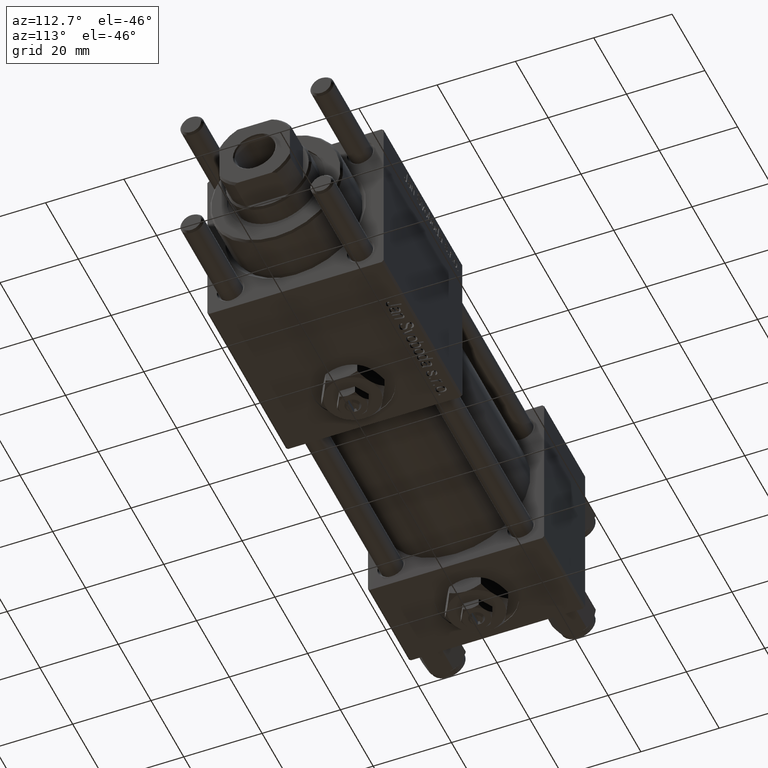
[diagram: clean part render]
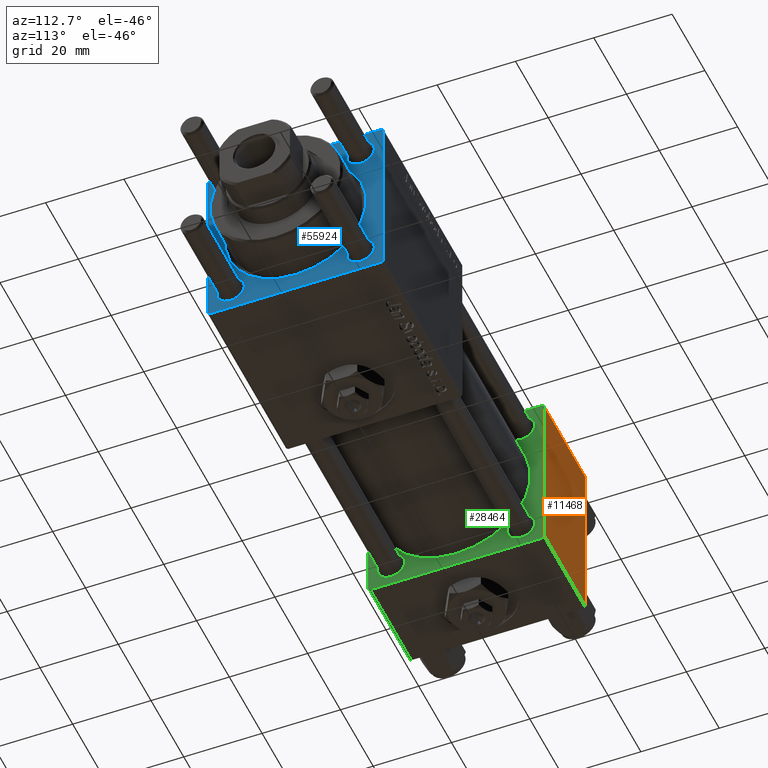
[diagram: same view with three faces highlighted in distinct colors, each labeled with its STEP entity id]
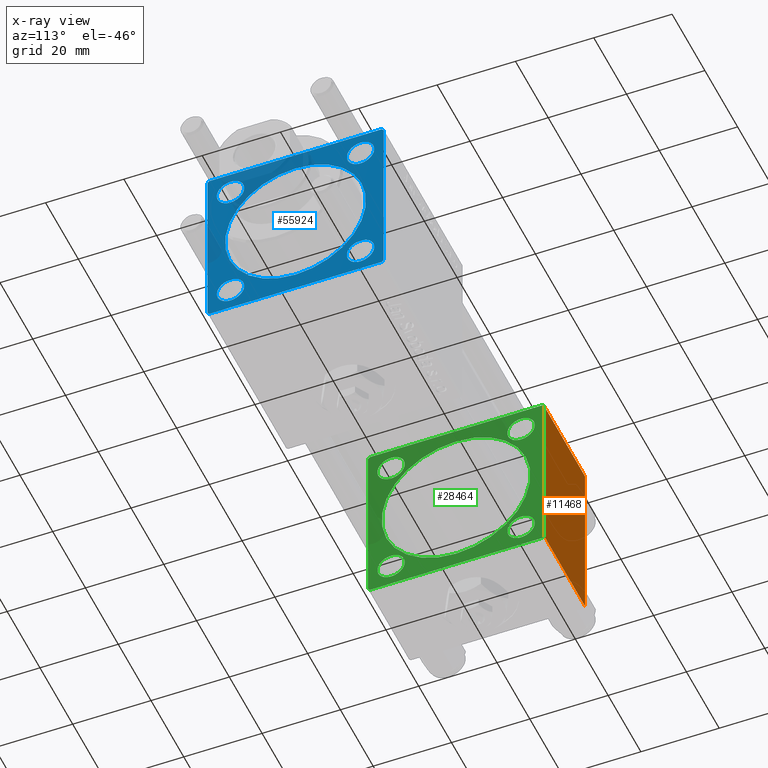
[diagram: x-ray of the same camera — body ghosted, the three highlighted faces saturated]
A machine part, auxiliary view with three faces highlighted in distinct colors.
The next image is the same camera in x-ray (body ghosted, the three faces saturated) — at least one of them is partly hidden behind the body in this view.
Their STEP definitions:

[orange] entity #11468 — the highlighted planar face has unit normal (0, 1, 0).
#2167 = LINE ( 'NONE', #20338, #26146 ) ;
#2534 = VERTEX_POINT ( 'NONE', #26929 ) ;
#2888 = VERTEX_POINT ( 'NONE', #6525 ) ;
#6502 = CARTESIAN_POINT ( 'NONE',  ( 25.00000000000000000, 22.50000000000000000, 21.99999999999999645 ) ) ;
#6525 = CARTESIAN_POINT ( 'NONE',  ( 0.000000000000000000, 22.50000000000000000, -21.99999999999996803 ) ) ;
#6838 = VERTEX_POINT ( 'NONE', #55417 ) ;
#8275 = EDGE_CURVE ( 'NONE', #6838, #2534, #10686, .T. ) ;
#8635 = DIRECTION ( 'NONE',  ( 0.000000000000000000, -0.000000000000000000, 1.000000000000000000 ) ) ;
#8833 = VERTEX_POINT ( 'NONE', #20430 ) ;
#10686 = LINE ( 'NONE', #6502, #23489 ) ;
#11468 = ADVANCED_FACE ( 'NONE', ( #30081 ), #48233, .T. ) ;
#13055 = VECTOR ( 'NONE', #22124, 1000.000000000000000 ) ;
#14270 = ORIENTED_EDGE ( 'NONE', *, *, #8275, .T. ) ;
#19312 = EDGE_LOOP ( 'NONE', ( #57855, #32314, #23194, #14270 ) ) ;
#19765 = CARTESIAN_POINT ( 'NONE',  ( 0.000000000000000000, 22.50000000000000000, 22.50000000000000355 ) ) ;
#20338 = CARTESIAN_POINT ( 'NONE',  ( 25.00000000000000000, 22.50000000000000000, -21.99999999999998224 ) ) ;
#20430 = CARTESIAN_POINT ( 'NONE',  ( 25.00000000000000000, 22.50000000000000000, -21.99999999999996803 ) ) ;
#22041 = CARTESIAN_POINT ( 'NONE',  ( 25.00000000000000000, 22.50000000000000000, 22.50000000000000355 ) ) ;
#22124 = DIRECTION ( 'NONE',  ( 0.000000000000000000, 0.000000000000000000, -1.000000000000000000 ) ) ;
#23194 = ORIENTED_EDGE ( 'NONE', *, *, #49014, .F. ) ;
#23489 = VECTOR ( 'NONE', #34162, 1000.000000000000000 ) ;
#24568 = AXIS2_PLACEMENT_3D ( 'NONE', #22041, #25921, #8635 ) ;
#25921 = DIRECTION ( 'NONE',  ( -0.000000000000000000, 1.000000000000000000, 0.000000000000000000 ) ) ;
#26146 = VECTOR ( 'NONE', #38474, 1000.000000000000000 ) ;
#26929 = CARTESIAN_POINT ( 'NONE',  ( 25.00000000000000000, 22.50000000000000000, 21.99999999999999645 ) ) ;
#28385 = LINE ( 'NONE', #19765, #58622 ) ;
#30081 = FACE_OUTER_BOUND ( 'NONE', #19312, .T. ) ;
#32314 = ORIENTED_EDGE ( 'NONE', *, *, #44165, .T. ) ;
#34162 = DIRECTION ( 'NONE',  ( 1.000000000000000000, 0.000000000000000000, 0.000000000000000000 ) ) ;
#38474 = DIRECTION ( 'NONE',  ( -1.000000000000000000, 0.000000000000000000, 0.000000000000000000 ) ) ;
#40848 = LINE ( 'NONE', #50374, #13055 ) ;
#44165 = EDGE_CURVE ( 'NONE', #8833, #2888, #2167, .T. ) ;
#46534 = DIRECTION ( 'NONE',  ( 0.000000000000000000, 0.000000000000000000, -1.000000000000000000 ) ) ;
#48233 = PLANE ( 'NONE',  #24568 ) ;
#49014 = EDGE_CURVE ( 'NONE', #6838, #2888, #28385, .T. ) ;
#50374 = CARTESIAN_POINT ( 'NONE',  ( 25.00000000000000000, 22.50000000000000000, 22.50000000000000355 ) ) ;
#53789 = EDGE_CURVE ( 'NONE', #2534, #8833, #40848, .T. ) ;
#55417 = CARTESIAN_POINT ( 'NONE',  ( 0.000000000000000000, 22.50000000000000000, 21.99999999999999645 ) ) ;
#57855 = ORIENTED_EDGE ( 'NONE', *, *, #53789, .T. ) ;
#58622 = VECTOR ( 'NONE', #46534, 1000.000000000000000 ) ;

[blue] entity #55924 — the highlighted planar face has unit normal (-1, 0, 0).
#23 = ORIENTED_EDGE ( 'NONE', *, *, #56389, .T. ) ;
#249 = CARTESIAN_POINT ( 'NONE',  ( 123.0000000000000142, 22.50000000000000355, 22.50000000000000355 ) ) ;
#540 = DIRECTION ( 'NONE',  ( 0.000000000000000000, 0.000000000000000000, -1.000000000000000000 ) ) ;
#557 = DIRECTION ( 'NONE',  ( 0.000000000000000000, 0.000000000000000000, 1.000000000000000000 ) ) ;
#2403 = EDGE_CURVE ( 'NONE', #38900, #55394, #55617, .T. ) ;
#2472 = CARTESIAN_POINT ( 'NONE',  ( 123.0000000000000142, 22.00000000000000355, -22.49999999999999645 ) ) ;
#2655 = ORIENTED_EDGE ( 'NONE', *, *, #44098, .T. ) ;
#3137 = FACE_BOUND ( 'NONE', #32100, .T. ) ;
#4509 = VERTEX_POINT ( 'NONE', #12715 ) ;
#4896 = EDGE_CURVE ( 'NONE', #6856, #5000, #16173, .T. ) ;
#5000 = VERTEX_POINT ( 'NONE', #47995 ) ;
#5122 = DIRECTION ( 'NONE',  ( -1.000000000000000000, 0.000000000000000000, -0.000000000000000000 ) ) ;
#5241 = CARTESIAN_POINT ( 'NONE',  ( 123.0000000000000142, -16.59999999999999076, -16.60000000000000853 ) ) ;
#5379 = VECTOR ( 'NONE', #35163, 1000.000000000000000 ) ;
#5402 = ORIENTED_EDGE ( 'NONE', *, *, #25968, .F. ) ;
#5508 = VECTOR ( 'NONE', #35130, 1000.000000000000000 ) ;
#6207 = EDGE_LOOP ( 'NONE', ( #58457, #51884 ) ) ;
#6355 = CARTESIAN_POINT ( 'NONE',  ( 123.0000000000000142, -22.49999999999999645, 22.00000000000000711 ) ) ;
#6595 = CARTESIAN_POINT ( 'NONE',  ( 123.0000000000000142, -16.59999999999999076, 20.10000000000000142 ) ) ;
#6643 = DIRECTION ( 'NONE',  ( -1.000000000000000000, 0.000000000000000000, -0.000000000000000000 ) ) ;
#6856 = VERTEX_POINT ( 'NONE', #14072 ) ;
#7830 = EDGE_CURVE ( 'NONE', #33444, #55043, #53837, .T. ) ;
#7872 = DIRECTION ( 'NONE',  ( -1.000000000000000000, 0.000000000000000000, -0.000000000000000000 ) ) ;
#8099 = CARTESIAN_POINT ( 'NONE',  ( 123.0000000000000142, -21.99999999999998224, -22.50000000000000000 ) ) ;
#8396 = VERTEX_POINT ( 'NONE', #54956 ) ;
#8470 = CARTESIAN_POINT ( 'NONE',  ( 123.0000000000000142, -16.59999999999999076, -20.10000000000003695 ) ) ;
#9027 = VERTEX_POINT ( 'NONE', #2472 ) ;
#9492 = EDGE_LOOP ( 'NONE', ( #29243, #53352, #55674, #12774, #5402, #30844, #13718, #30207 ) ) ;
#9924 = DIRECTION ( 'NONE',  ( 0.000000000000000000, 0.000000000000000000, 1.000000000000000000 ) ) ;
#10340 = DIRECTION ( 'NONE',  ( 0.000000000000000000, 0.000000000000000000, 1.000000000000000000 ) ) ;
#10551 = DIRECTION ( 'NONE',  ( -0.000000000000000000, -0.7071067811865573427, -0.7071067811865378028 ) ) ;
#10565 = DIRECTION ( 'NONE',  ( -1.000000000000000000, 0.000000000000000000, -0.000000000000000000 ) ) ;
#10677 = CARTESIAN_POINT ( 'NONE',  ( 123.0000000000000142, 16.59999999999999787, 20.10000000000003340 ) ) ;
#11096 = LINE ( 'NONE', #34279, #31958 ) ;
#12236 = DIRECTION ( 'NONE',  ( -1.000000000000000000, 0.000000000000000000, -0.000000000000000000 ) ) ;
#12664 = FACE_BOUND ( 'NONE', #48649, .T. ) ;
#12715 = CARTESIAN_POINT ( 'NONE',  ( 123.0000000000000142, 16.59999999999999787, 13.09999999999997300 ) ) ;
#12774 = ORIENTED_EDGE ( 'NONE', *, *, #47250, .T. ) ;
#12886 = VECTOR ( 'NONE', #10551, 1000.000000000000000 ) ;
#12957 = FACE_OUTER_BOUND ( 'NONE', #9492, .T. ) ;
#13518 = CARTESIAN_POINT ( 'NONE',  ( 123.0000000000000142, 21.99999999999996092, 22.50000000000000355 ) ) ;
#13718 = ORIENTED_EDGE ( 'NONE', *, *, #52506, .T. ) ;
#13788 = AXIS2_PLACEMENT_3D ( 'NONE', #14392, #32531, #9924 ) ;
#14072 = CARTESIAN_POINT ( 'NONE',  ( 123.0000000000000142, -21.99999999999998224, 22.49999999999999289 ) ) ;
#14392 = CARTESIAN_POINT ( 'NONE',  ( 123.0000000000000142, 0.000000000000000000, 0.000000000000000000 ) ) ;
#14516 = ORIENTED_EDGE ( 'NONE', *, *, #19273, .T. ) ;
#14712 = AXIS2_PLACEMENT_3D ( 'NONE', #20020, #12236, #48235 ) ;
#14759 = VERTEX_POINT ( 'NONE', #44154 ) ;
#15163 = CARTESIAN_POINT ( 'NONE',  ( 123.0000000000000142, 0.000000000000000000, -18.00000000000000355 ) ) ;
#15648 = CIRCLE ( 'NONE', #14712, 3.500000000000031086 ) ;
#16173 = LINE ( 'NONE', #6355, #12886 ) ;
#17166 = EDGE_CURVE ( 'NONE', #55394, #38900, #19839, .T. ) ;
#17719 = DIRECTION ( 'NONE',  ( -1.000000000000000000, 0.000000000000000000, -0.000000000000000000 ) ) ;
#18133 = ORIENTED_EDGE ( 'NONE', *, *, #7830, .T. ) ;
#18662 = VERTEX_POINT ( 'NONE', #8099 ) ;
#18744 = CARTESIAN_POINT ( 'NONE',  ( 123.0000000000000142, 16.59999999999999787, -16.60000000000000497 ) ) ;
#19273 = EDGE_CURVE ( 'NONE', #21733, #20828, #55065, .T. ) ;
#19839 = CIRCLE ( 'NONE', #55927, 3.499999999999989342 ) ;
#20020 = CARTESIAN_POINT ( 'NONE',  ( 123.0000000000000142, 16.59999999999999787, 16.60000000000000497 ) ) ;
#20438 = VERTEX_POINT ( 'NONE', #13518 ) ;
#20828 = VERTEX_POINT ( 'NONE', #52676 ) ;
#21125 = AXIS2_PLACEMENT_3D ( 'NONE', #22392, #5122, #54815 ) ;
#21308 = FACE_BOUND ( 'NONE', #38746, .T. ) ;
#21558 = AXIS2_PLACEMENT_3D ( 'NONE', #18744, #35480, #557 ) ;
#21733 = VERTEX_POINT ( 'NONE', #15163 ) ;
#22392 = CARTESIAN_POINT ( 'NONE',  ( 123.0000000000000142, 16.59999999999999787, -16.60000000000000497 ) ) ;
#24879 = ORIENTED_EDGE ( 'NONE', *, *, #52364, .T. ) ;
#25968 = EDGE_CURVE ( 'NONE', #37747, #14759, #28532, .T. ) ;
#27323 = AXIS2_PLACEMENT_3D ( 'NONE', #43117, #42839, #52920 ) ;
#28229 = CIRCLE ( 'NONE', #21558, 3.500000000000031086 ) ;
#28532 = LINE ( 'NONE', #249, #38125 ) ;
#28778 = DIRECTION ( 'NONE',  ( -1.000000000000000000, 0.000000000000000000, -0.000000000000000000 ) ) ;
#29243 = ORIENTED_EDGE ( 'NONE', *, *, #48143, .T. ) ;
#30172 = AXIS2_PLACEMENT_3D ( 'NONE', #48962, #17719, #53135 ) ;
#30207 = ORIENTED_EDGE ( 'NONE', *, *, #4896, .T. ) ;
#30799 = PLANE ( 'NONE',  #30172 ) ;
#30844 = ORIENTED_EDGE ( 'NONE', *, *, #56087, .T. ) ;
#30850 = VECTOR ( 'NONE', #57379, 999.9999999999998863 ) ;
#31632 = VECTOR ( 'NONE', #41145, 1000.000000000000000 ) ;
#31958 = VECTOR ( 'NONE', #47088, 1000.000000000000000 ) ;
#32100 = EDGE_LOOP ( 'NONE', ( #46766, #24879 ) ) ;
#32200 = DIRECTION ( 'NONE',  ( -1.000000000000000000, 0.000000000000000000, -0.000000000000000000 ) ) ;
#32251 = AXIS2_PLACEMENT_3D ( 'NONE', #47062, #32200, #37855 ) ;
#32411 = LINE ( 'NONE', #57800, #58618 ) ;
#32531 = DIRECTION ( 'NONE',  ( -1.000000000000000000, 0.000000000000000000, -0.000000000000000000 ) ) ;
#33019 = EDGE_CURVE ( 'NONE', #55043, #33444, #56298, .T. ) ;
#33302 = EDGE_CURVE ( 'NONE', #44405, #8396, #41078, .T. ) ;
#33444 = VERTEX_POINT ( 'NONE', #46491 ) ;
#34028 = VERTEX_POINT ( 'NONE', #49844 ) ;
#34279 = CARTESIAN_POINT ( 'NONE',  ( 123.0000000000000142, 22.50000000000000355, -22.00000000000001066 ) ) ;
#34836 = CARTESIAN_POINT ( 'NONE',  ( 123.0000000000000142, 21.99999999999996092, 22.50000000000000355 ) ) ;
#35130 = DIRECTION ( 'NONE',  ( 0.000000000000000000, -0.7071067811865573427, 0.7071067811865378028 ) ) ;
#35163 = DIRECTION ( 'NONE',  ( 0.000000000000000000, 0.000000000000000000, -1.000000000000000000 ) ) ;
#35480 = DIRECTION ( 'NONE',  ( -1.000000000000000000, 0.000000000000000000, -0.000000000000000000 ) ) ;
#35745 = LINE ( 'NONE', #45265, #5379 ) ;
#35764 = EDGE_CURVE ( 'NONE', #9027, #18662, #50083, .T. ) ;
#36842 = CIRCLE ( 'NONE', #27323, 3.500000000000031086 ) ;
#36986 = CARTESIAN_POINT ( 'NONE',  ( 123.0000000000000142, 22.50000000000000355, -22.49999999999999645 ) ) ;
#37230 = CARTESIAN_POINT ( 'NONE',  ( 123.0000000000000142, 16.59999999999999787, -20.10000000000003340 ) ) ;
#37296 = DIRECTION ( 'NONE',  ( 0.000000000000000000, 0.000000000000000000, 1.000000000000000000 ) ) ;
#37747 = VERTEX_POINT ( 'NONE', #45261 ) ;
#37855 = DIRECTION ( 'NONE',  ( 0.000000000000000000, 0.000000000000000000, 1.000000000000000000 ) ) ;
#38125 = VECTOR ( 'NONE', #540, 1000.000000000000000 ) ;
#38476 = CARTESIAN_POINT ( 'NONE',  ( 123.0000000000000142, -16.59999999999999076, 16.60000000000000853 ) ) ;
#38746 = EDGE_LOOP ( 'NONE', ( #23, #44013 ) ) ;
#38900 = VERTEX_POINT ( 'NONE', #6595 ) ;
#39541 = LINE ( 'NONE', #52930, #30850 ) ;
#39899 = EDGE_CURVE ( 'NONE', #57920, #4509, #15648, .T. ) ;
#41078 = CIRCLE ( 'NONE', #21125, 3.500000000000031086 ) ;
#41145 = DIRECTION ( 'NONE',  ( 0.000000000000000000, -1.000000000000000000, -7.709882115452476934E-17 ) ) ;
#41356 = CIRCLE ( 'NONE', #13788, 18.00000000000000355 ) ;
#41639 = DIRECTION ( 'NONE',  ( 0.000000000000000000, -1.000000000000000000, -2.312964634635742957E-16 ) ) ;
#41646 = EDGE_CURVE ( 'NONE', #34028, #18662, #39541, .T. ) ;
#42166 = CARTESIAN_POINT ( 'NONE',  ( 123.0000000000000142, -16.59999999999999076, 16.60000000000000853 ) ) ;
#42839 = DIRECTION ( 'NONE',  ( -1.000000000000000000, 0.000000000000000000, -0.000000000000000000 ) ) ;
#43117 = CARTESIAN_POINT ( 'NONE',  ( 123.0000000000000142, 16.59999999999999787, 16.60000000000000497 ) ) ;
#43189 = LINE ( 'NONE', #34836, #5508 ) ;
#44013 = ORIENTED_EDGE ( 'NONE', *, *, #39899, .T. ) ;
#44098 = EDGE_CURVE ( 'NONE', #20828, #21733, #41356, .T. ) ;
#44154 = CARTESIAN_POINT ( 'NONE',  ( 123.0000000000000142, 22.50000000000000355, -21.99999999999999645 ) ) ;
#44405 = VERTEX_POINT ( 'NONE', #37230 ) ;
#45261 = CARTESIAN_POINT ( 'NONE',  ( 123.0000000000000142, 22.50000000000000355, 21.99999999999997513 ) ) ;
#45265 = CARTESIAN_POINT ( 'NONE',  ( 123.0000000000000142, -22.49999999999999645, 22.49999999999999289 ) ) ;
#46107 = AXIS2_PLACEMENT_3D ( 'NONE', #42166, #28778, #10340 ) ;
#46491 = CARTESIAN_POINT ( 'NONE',  ( 123.0000000000000142, -16.59999999999999076, -13.09999999999997655 ) ) ;
#46766 = ORIENTED_EDGE ( 'NONE', *, *, #33302, .T. ) ;
#47062 = CARTESIAN_POINT ( 'NONE',  ( 123.0000000000000142, 0.000000000000000000, 0.000000000000000000 ) ) ;
#47088 = DIRECTION ( 'NONE',  ( -0.000000000000000000, 0.7071067811865573427, 0.7071067811865378028 ) ) ;
#47250 = EDGE_CURVE ( 'NONE', #9027, #14759, #11096, .T. ) ;
#47425 = ORIENTED_EDGE ( 'NONE', *, *, #33019, .T. ) ;
#47995 = CARTESIAN_POINT ( 'NONE',  ( 123.0000000000000142, -22.49999999999999645, 22.00000000000000711 ) ) ;
#48143 = EDGE_CURVE ( 'NONE', #5000, #34028, #35745, .T. ) ;
#48235 = DIRECTION ( 'NONE',  ( 0.000000000000000000, 0.000000000000000000, 1.000000000000000000 ) ) ;
#48638 = DIRECTION ( 'NONE',  ( 0.000000000000000000, 0.000000000000000000, 1.000000000000000000 ) ) ;
#48649 = EDGE_LOOP ( 'NONE', ( #14516, #2655 ) ) ;
#48962 = CARTESIAN_POINT ( 'NONE',  ( 123.0000000000000142, 0.000000000000000000, 0.000000000000000000 ) ) ;
#49844 = CARTESIAN_POINT ( 'NONE',  ( 123.0000000000000142, -22.49999999999999645, -21.99999999999997868 ) ) ;
#50083 = LINE ( 'NONE', #36986, #31632 ) ;
#51884 = ORIENTED_EDGE ( 'NONE', *, *, #2403, .T. ) ;
#52364 = EDGE_CURVE ( 'NONE', #8396, #44405, #28229, .T. ) ;
#52480 = DIRECTION ( 'NONE',  ( 0.000000000000000000, 0.000000000000000000, 1.000000000000000000 ) ) ;
#52506 = EDGE_CURVE ( 'NONE', #20438, #6856, #32411, .T. ) ;
#52676 = CARTESIAN_POINT ( 'NONE',  ( 123.0000000000000142, 2.204364238465235822E-15, 18.00000000000000355 ) ) ;
#52920 = DIRECTION ( 'NONE',  ( 0.000000000000000000, 0.000000000000000000, 1.000000000000000000 ) ) ;
#52930 = CARTESIAN_POINT ( 'NONE',  ( 123.0000000000000142, -21.99999999999999645, -22.50000000000000000 ) ) ;
#53135 = DIRECTION ( 'NONE',  ( -0.000000000000000000, 0.000000000000000000, 1.000000000000000000 ) ) ;
#53352 = ORIENTED_EDGE ( 'NONE', *, *, #41646, .T. ) ;
#53428 = FACE_BOUND ( 'NONE', #58146, .T. ) ;
#53720 = FACE_BOUND ( 'NONE', #6207, .T. ) ;
#53837 = CIRCLE ( 'NONE', #56691, 3.500000000000031086 ) ;
#54378 = AXIS2_PLACEMENT_3D ( 'NONE', #56932, #10565, #52480 ) ;
#54815 = DIRECTION ( 'NONE',  ( 0.000000000000000000, 0.000000000000000000, 1.000000000000000000 ) ) ;
#54956 = CARTESIAN_POINT ( 'NONE',  ( 123.0000000000000142, 16.59999999999999787, -13.09999999999997300 ) ) ;
#55043 = VERTEX_POINT ( 'NONE', #8470 ) ;
#55065 = CIRCLE ( 'NONE', #32251, 18.00000000000000355 ) ;
#55394 = VERTEX_POINT ( 'NONE', #56278 ) ;
#55617 = CIRCLE ( 'NONE', #46107, 3.499999999999989342 ) ;
#55674 = ORIENTED_EDGE ( 'NONE', *, *, #35764, .F. ) ;
#55924 = ADVANCED_FACE ( 'NONE', ( #53428, #3137, #21308, #53720, #12664, #12957 ), #30799, .F. ) ;
#55927 = AXIS2_PLACEMENT_3D ( 'NONE', #38476, #6643, #37296 ) ;
#56087 = EDGE_CURVE ( 'NONE', #37747, #20438, #43189, .T. ) ;
#56278 = CARTESIAN_POINT ( 'NONE',  ( 123.0000000000000142, -16.59999999999999076, 13.10000000000001741 ) ) ;
#56298 = CIRCLE ( 'NONE', #54378, 3.500000000000031086 ) ;
#56389 = EDGE_CURVE ( 'NONE', #4509, #57920, #36842, .T. ) ;
#56691 = AXIS2_PLACEMENT_3D ( 'NONE', #5241, #7872, #48638 ) ;
#56932 = CARTESIAN_POINT ( 'NONE',  ( 123.0000000000000142, -16.59999999999999076, -16.60000000000000853 ) ) ;
#57379 = DIRECTION ( 'NONE',  ( 0.000000000000000000, 0.7071067811865425767, -0.7071067811865525687 ) ) ;
#57800 = CARTESIAN_POINT ( 'NONE',  ( 123.0000000000000142, 22.50000000000000355, 22.50000000000000355 ) ) ;
#57920 = VERTEX_POINT ( 'NONE', #10677 ) ;
#58146 = EDGE_LOOP ( 'NONE', ( #47425, #18133 ) ) ;
#58457 = ORIENTED_EDGE ( 'NONE', *, *, #17166, .T. ) ;
#58618 = VECTOR ( 'NONE', #41639, 1000.000000000000000 ) ;

[green] entity #28464 — the highlighted planar face has unit normal (-1, 0, 0).
#138 = CARTESIAN_POINT ( 'NONE',  ( 25.00000000000000000, -2.602085213965210642E-15, 0.000000000000000000 ) ) ;
#1045 = DIRECTION ( 'NONE',  ( 0.000000000000000000, 0.000000000000000000, 1.000000000000000000 ) ) ;
#1433 = LINE ( 'NONE', #5621, #13195 ) ;
#1451 = LINE ( 'NONE', #56491, #29256 ) ;
#1626 = AXIS2_PLACEMENT_3D ( 'NONE', #35129, #53865, #58021 ) ;
#1663 = ORIENTED_EDGE ( 'NONE', *, *, #3251, .F. ) ;
#1924 = DIRECTION ( 'NONE',  ( 0.000000000000000000, 0.000000000000000000, 1.000000000000000000 ) ) ;
#2467 = DIRECTION ( 'NONE',  ( -1.000000000000000000, 0.000000000000000000, -0.000000000000000000 ) ) ;
#2534 = VERTEX_POINT ( 'NONE', #26929 ) ;
#2574 = EDGE_CURVE ( 'NONE', #39057, #35759, #35562, .T. ) ;
#2688 = LINE ( 'NONE', #16677, #6401 ) ;
#2807 = AXIS2_PLACEMENT_3D ( 'NONE', #30432, #31597, #27137 ) ;
#3214 = CARTESIAN_POINT ( 'NONE',  ( 25.00000000000000000, -16.59999999999999076, -13.10000000000001741 ) ) ;
#3251 = EDGE_CURVE ( 'NONE', #27130, #32746, #9998, .T. ) ;
#3284 = CIRCLE ( 'NONE', #54607, 3.500000000000003109 ) ;
#4245 = DIRECTION ( 'NONE',  ( -1.000000000000000000, 0.000000000000000000, -0.000000000000000000 ) ) ;
#5621 = CARTESIAN_POINT ( 'NONE',  ( 25.00000000000000000, 22.50000000000000000, -22.49999999999999645 ) ) ;
#5960 = DIRECTION ( 'NONE',  ( 0.000000000000000000, 0.000000000000000000, 1.000000000000000000 ) ) ;
#6112 = DIRECTION ( 'NONE',  ( -1.000000000000000000, 0.000000000000000000, -0.000000000000000000 ) ) ;
#6334 = VERTEX_POINT ( 'NONE', #13397 ) ;
#6392 = CARTESIAN_POINT ( 'NONE',  ( 25.00000000000000000, -16.59999999999999076, 16.60000000000000853 ) ) ;
#6401 = VECTOR ( 'NONE', #38133, 1000.000000000000000 ) ;
#6764 = EDGE_CURVE ( 'NONE', #47202, #56483, #53803, .T. ) ;
#6944 = CARTESIAN_POINT ( 'NONE',  ( 25.00000000000000000, -16.59999999999999076, -16.60000000000000853 ) ) ;
#7529 = DIRECTION ( 'NONE',  ( -0.000000000000000000, 0.7071067811865426878, 0.7071067811865524577 ) ) ;
#8294 = VERTEX_POINT ( 'NONE', #56476 ) ;
#8591 = FACE_BOUND ( 'NONE', #9192, .T. ) ;
#8788 = AXIS2_PLACEMENT_3D ( 'NONE', #19504, #23369, #41203 ) ;
#8833 = VERTEX_POINT ( 'NONE', #20430 ) ;
#9192 = EDGE_LOOP ( 'NONE', ( #34732, #31561 ) ) ;
#9384 = EDGE_CURVE ( 'NONE', #35759, #40297, #2688, .T. ) ;
#9998 = CIRCLE ( 'NONE', #19531, 19.00000000000000000 ) ;
#10436 = DIRECTION ( 'NONE',  ( 0.000000000000000000, -1.000000000000000000, -7.709882115452476934E-17 ) ) ;
#10480 = EDGE_CURVE ( 'NONE', #40297, #40833, #1451, .T. ) ;
#10494 = ORIENTED_EDGE ( 'NONE', *, *, #13291, .T. ) ;
#10590 = CARTESIAN_POINT ( 'NONE',  ( 25.00000000000000000, 16.59999999999999787, 16.60000000000000497 ) ) ;
#10833 = VERTEX_POINT ( 'NONE', #47216 ) ;
#11785 = ORIENTED_EDGE ( 'NONE', *, *, #46790, .T. ) ;
#12366 = CARTESIAN_POINT ( 'NONE',  ( 25.00000000000000000, 21.99999999999999289, 22.50000000000000355 ) ) ;
#13055 = VECTOR ( 'NONE', #22124, 1000.000000000000000 ) ;
#13195 = VECTOR ( 'NONE', #28239, 1000.000000000000000 ) ;
#13260 = DIRECTION ( 'NONE',  ( 0.000000000000000000, 0.000000000000000000, 1.000000000000000000 ) ) ;
#13291 = EDGE_CURVE ( 'NONE', #6334, #51943, #27289, .T. ) ;
#13364 = FACE_BOUND ( 'NONE', #37019, .T. ) ;
#13397 = CARTESIAN_POINT ( 'NONE',  ( 25.00000000000000000, -16.59999999999999076, 20.10000000000000142 ) ) ;
#13923 = AXIS2_PLACEMENT_3D ( 'NONE', #26874, #4245, #22407 ) ;
#14751 = EDGE_CURVE ( 'NONE', #51943, #6334, #19803, .T. ) ;
#14818 = CIRCLE ( 'NONE', #37633, 3.499999999999989342 ) ;
#14877 = ORIENTED_EDGE ( 'NONE', *, *, #18101, .F. ) ;
#14974 = CARTESIAN_POINT ( 'NONE',  ( 25.00000000000000000, -16.59999999999999076, -20.09999999999999787 ) ) ;
#16320 = ORIENTED_EDGE ( 'NONE', *, *, #23915, .T. ) ;
#16377 = AXIS2_PLACEMENT_3D ( 'NONE', #49368, #17234, #35974 ) ;
#16677 = CARTESIAN_POINT ( 'NONE',  ( 25.00000000000000000, -22.50000000000000000, 22.50000000000000000 ) ) ;
#17234 = DIRECTION ( 'NONE',  ( -1.000000000000000000, 0.000000000000000000, -0.000000000000000000 ) ) ;
#17430 = AXIS2_PLACEMENT_3D ( 'NONE', #29160, #33331, #5960 ) ;
#17528 = FACE_BOUND ( 'NONE', #45147, .T. ) ;
#17867 = AXIS2_PLACEMENT_3D ( 'NONE', #6392, #29017, #1924 ) ;
#18101 = EDGE_CURVE ( 'NONE', #29034, #40833, #1433, .T. ) ;
#18812 = LINE ( 'NONE', #33648, #34087 ) ;
#19504 = CARTESIAN_POINT ( 'NONE',  ( 25.00000000000000000, -2.602085213965210642E-15, 0.000000000000000000 ) ) ;
#19531 = AXIS2_PLACEMENT_3D ( 'NONE', #138, #54025, #13260 ) ;
#19803 = CIRCLE ( 'NONE', #17867, 3.499999999999992895 ) ;
#20430 = CARTESIAN_POINT ( 'NONE',  ( 25.00000000000000000, 22.50000000000000000, -21.99999999999996803 ) ) ;
#20643 = DIRECTION ( 'NONE',  ( 0.000000000000000000, 0.000000000000000000, 1.000000000000000000 ) ) ;
#21339 = EDGE_CURVE ( 'NONE', #8294, #10833, #40837, .T. ) ;
#21416 = FACE_BOUND ( 'NONE', #37954, .T. ) ;
#22124 = DIRECTION ( 'NONE',  ( 0.000000000000000000, 0.000000000000000000, -1.000000000000000000 ) ) ;
#22407 = DIRECTION ( 'NONE',  ( 0.000000000000000000, 0.000000000000000000, 1.000000000000000000 ) ) ;
#23369 = DIRECTION ( 'NONE',  ( 1.000000000000000000, -0.000000000000000000, 0.000000000000000000 ) ) ;
#23701 = CARTESIAN_POINT ( 'NONE',  ( 25.00000000000000000, 16.59999999999999787, 13.10000000000000142 ) ) ;
#23915 = EDGE_CURVE ( 'NONE', #27262, #39057, #34199, .T. ) ;
#24123 = CARTESIAN_POINT ( 'NONE',  ( 25.00000000000000000, 22.50000000000000000, 22.50000000000000355 ) ) ;
#25977 = LINE ( 'NONE', #43252, #41599 ) ;
#26874 = CARTESIAN_POINT ( 'NONE',  ( 25.00000000000000000, -16.59999999999999076, -16.60000000000000853 ) ) ;
#26929 = CARTESIAN_POINT ( 'NONE',  ( 25.00000000000000000, 22.50000000000000000, 21.99999999999999645 ) ) ;
#27130 = VERTEX_POINT ( 'NONE', #56422 ) ;
#27137 = DIRECTION ( 'NONE',  ( 0.000000000000000000, 0.000000000000000000, 1.000000000000000000 ) ) ;
#27262 = VERTEX_POINT ( 'NONE', #12366 ) ;
#27289 = CIRCLE ( 'NONE', #1626, 3.499999999999992895 ) ;
#27866 = ORIENTED_EDGE ( 'NONE', *, *, #53789, .F. ) ;
#28239 = DIRECTION ( 'NONE',  ( 0.000000000000000000, -1.000000000000000000, -2.312964634635742957E-16 ) ) ;
#28464 = ADVANCED_FACE ( 'NONE', ( #8591, #17528, #13364, #21416, #39555, #31210 ), #49066, .F. ) ;
#29017 = DIRECTION ( 'NONE',  ( -1.000000000000000000, 0.000000000000000000, -0.000000000000000000 ) ) ;
#29034 = VERTEX_POINT ( 'NONE', #29620 ) ;
#29160 = CARTESIAN_POINT ( 'NONE',  ( 25.00000000000000000, 16.59999999999999787, -16.60000000000000497 ) ) ;
#29256 = VECTOR ( 'NONE', #37771, 1000.000000000000000 ) ;
#29620 = CARTESIAN_POINT ( 'NONE',  ( 25.00000000000000000, 21.99999999999999289, -22.49999999999999645 ) ) ;
#30383 = CARTESIAN_POINT ( 'NONE',  ( 25.00000000000000000, -21.99999999999997158, -22.50000000000000711 ) ) ;
#30432 = CARTESIAN_POINT ( 'NONE',  ( 25.00000000000000000, 16.59999999999999787, -16.60000000000000497 ) ) ;
#30644 = CARTESIAN_POINT ( 'NONE',  ( 25.00000000000000000, -21.99999999999997868, 22.50000000000000000 ) ) ;
#30859 = ORIENTED_EDGE ( 'NONE', *, *, #55179, .T. ) ;
#31210 = FACE_OUTER_BOUND ( 'NONE', #47047, .T. ) ;
#31561 = ORIENTED_EDGE ( 'NONE', *, *, #45028, .T. ) ;
#31597 = DIRECTION ( 'NONE',  ( -1.000000000000000000, 0.000000000000000000, -0.000000000000000000 ) ) ;
#31957 = ORIENTED_EDGE ( 'NONE', *, *, #42768, .T. ) ;
#32038 = CARTESIAN_POINT ( 'NONE',  ( 25.00000000000000000, -2.602085213965210642E-15, 19.00000000000000000 ) ) ;
#32198 = VERTEX_POINT ( 'NONE', #23701 ) ;
#32493 = ORIENTED_EDGE ( 'NONE', *, *, #9384, .T. ) ;
#32746 = VERTEX_POINT ( 'NONE', #32038 ) ;
#33331 = DIRECTION ( 'NONE',  ( -1.000000000000000000, 0.000000000000000000, -0.000000000000000000 ) ) ;
#33648 = CARTESIAN_POINT ( 'NONE',  ( 25.00000000000000000, 21.99999999999999289, 22.50000000000000355 ) ) ;
#34014 = EDGE_CURVE ( 'NONE', #32746, #27130, #54410, .T. ) ;
#34087 = VECTOR ( 'NONE', #42296, 1000.000000000000114 ) ;
#34199 = LINE ( 'NONE', #24123, #39986 ) ;
#34732 = ORIENTED_EDGE ( 'NONE', *, *, #6764, .T. ) ;
#35129 = CARTESIAN_POINT ( 'NONE',  ( 25.00000000000000000, -16.59999999999999076, 16.60000000000000853 ) ) ;
#35364 = EDGE_LOOP ( 'NONE', ( #52598, #1663 ) ) ;
#35562 = LINE ( 'NONE', #53133, #54678 ) ;
#35759 = VERTEX_POINT ( 'NONE', #41443 ) ;
#35810 = ORIENTED_EDGE ( 'NONE', *, *, #14751, .T. ) ;
#35974 = DIRECTION ( 'NONE',  ( -0.000000000000000000, 0.000000000000000000, 1.000000000000000000 ) ) ;
#36119 = EDGE_CURVE ( 'NONE', #10833, #8294, #53517, .T. ) ;
#36691 = CIRCLE ( 'NONE', #38595, 3.500000000000003109 ) ;
#37019 = EDGE_LOOP ( 'NONE', ( #35810, #10494 ) ) ;
#37633 = AXIS2_PLACEMENT_3D ( 'NONE', #6944, #2467, #20643 ) ;
#37771 = DIRECTION ( 'NONE',  ( 0.000000000000000000, 0.7071067811865426878, -0.7071067811865524577 ) ) ;
#37954 = EDGE_LOOP ( 'NONE', ( #31957, #11785 ) ) ;
#38133 = DIRECTION ( 'NONE',  ( 0.000000000000000000, 0.000000000000000000, -1.000000000000000000 ) ) ;
#38201 = CARTESIAN_POINT ( 'NONE',  ( 25.00000000000000000, -16.59999999999999076, 13.10000000000001386 ) ) ;
#38595 = AXIS2_PLACEMENT_3D ( 'NONE', #10590, #6112, #41224 ) ;
#38845 = ORIENTED_EDGE ( 'NONE', *, *, #10480, .T. ) ;
#39057 = VERTEX_POINT ( 'NONE', #30644 ) ;
#39555 = FACE_BOUND ( 'NONE', #35364, .T. ) ;
#39986 = VECTOR ( 'NONE', #10436, 1000.000000000000000 ) ;
#40297 = VERTEX_POINT ( 'NONE', #46054 ) ;
#40619 = DIRECTION ( 'NONE',  ( -0.000000000000000000, -0.7071067811865525687, -0.7071067811865425767 ) ) ;
#40833 = VERTEX_POINT ( 'NONE', #30383 ) ;
#40837 = CIRCLE ( 'NONE', #2807, 3.500000000000003109 ) ;
#40848 = LINE ( 'NONE', #50374, #13055 ) ;
#41203 = DIRECTION ( 'NONE',  ( 0.000000000000000000, 0.000000000000000000, 1.000000000000000000 ) ) ;
#41224 = DIRECTION ( 'NONE',  ( 0.000000000000000000, 0.000000000000000000, 1.000000000000000000 ) ) ;
#41443 = CARTESIAN_POINT ( 'NONE',  ( 25.00000000000000000, -22.50000000000000000, 22.00000000000000000 ) ) ;
#41599 = VECTOR ( 'NONE', #7529, 1000.000000000000000 ) ;
#41837 = CARTESIAN_POINT ( 'NONE',  ( 25.00000000000000000, 16.59999999999999787, 16.60000000000000497 ) ) ;
#42296 = DIRECTION ( 'NONE',  ( 0.000000000000000000, -0.7071067811865474617, 0.7071067811865474617 ) ) ;
#42756 = ORIENTED_EDGE ( 'NONE', *, *, #2574, .T. ) ;
#42768 = EDGE_CURVE ( 'NONE', #32198, #52387, #3284, .T. ) ;
#43252 = CARTESIAN_POINT ( 'NONE',  ( 25.00000000000000000, 22.50000000000000000, -21.99999999999998224 ) ) ;
#45028 = EDGE_CURVE ( 'NONE', #56483, #47202, #14818, .T. ) ;
#45147 = EDGE_LOOP ( 'NONE', ( #54964, #52347 ) ) ;
#45417 = DIRECTION ( 'NONE',  ( -1.000000000000000000, 0.000000000000000000, -0.000000000000000000 ) ) ;
#46054 = CARTESIAN_POINT ( 'NONE',  ( 25.00000000000000000, -22.50000000000000000, -21.99999999999997158 ) ) ;
#46790 = EDGE_CURVE ( 'NONE', #52387, #32198, #36691, .T. ) ;
#47047 = EDGE_LOOP ( 'NONE', ( #14877, #30859, #27866, #53338, #16320, #42756, #32493, #38845 ) ) ;
#47202 = VERTEX_POINT ( 'NONE', #14974 ) ;
#47216 = CARTESIAN_POINT ( 'NONE',  ( 25.00000000000000000, 16.59999999999999787, -20.10000000000000853 ) ) ;
#49066 = PLANE ( 'NONE',  #16377 ) ;
#49368 = CARTESIAN_POINT ( 'NONE',  ( 25.00000000000000000, 0.000000000000000000, 0.000000000000000000 ) ) ;
#50276 = CARTESIAN_POINT ( 'NONE',  ( 25.00000000000000000, 16.59999999999999787, 20.10000000000000853 ) ) ;
#50374 = CARTESIAN_POINT ( 'NONE',  ( 25.00000000000000000, 22.50000000000000000, 22.50000000000000355 ) ) ;
#51943 = VERTEX_POINT ( 'NONE', #38201 ) ;
#52347 = ORIENTED_EDGE ( 'NONE', *, *, #21339, .T. ) ;
#52387 = VERTEX_POINT ( 'NONE', #50276 ) ;
#52598 = ORIENTED_EDGE ( 'NONE', *, *, #34014, .F. ) ;
#53133 = CARTESIAN_POINT ( 'NONE',  ( 25.00000000000000000, -22.50000000000000000, 22.00000000000000000 ) ) ;
#53338 = ORIENTED_EDGE ( 'NONE', *, *, #58722, .T. ) ;
#53517 = CIRCLE ( 'NONE', #17430, 3.500000000000003109 ) ;
#53789 = EDGE_CURVE ( 'NONE', #2534, #8833, #40848, .T. ) ;
#53803 = CIRCLE ( 'NONE', #13923, 3.499999999999989342 ) ;
#53865 = DIRECTION ( 'NONE',  ( -1.000000000000000000, 0.000000000000000000, -0.000000000000000000 ) ) ;
#54025 = DIRECTION ( 'NONE',  ( 1.000000000000000000, -0.000000000000000000, 0.000000000000000000 ) ) ;
#54410 = CIRCLE ( 'NONE', #8788, 19.00000000000000000 ) ;
#54607 = AXIS2_PLACEMENT_3D ( 'NONE', #41837, #45417, #1045 ) ;
#54678 = VECTOR ( 'NONE', #40619, 999.9999999999998863 ) ;
#54964 = ORIENTED_EDGE ( 'NONE', *, *, #36119, .T. ) ;
#55179 = EDGE_CURVE ( 'NONE', #29034, #8833, #25977, .T. ) ;
#56422 = CARTESIAN_POINT ( 'NONE',  ( 25.00000000000000000, -2.752562955852396712E-16, -19.00000000000000000 ) ) ;
#56476 = CARTESIAN_POINT ( 'NONE',  ( 25.00000000000000000, 16.59999999999999787, -13.10000000000000142 ) ) ;
#56483 = VERTEX_POINT ( 'NONE', #3214 ) ;
#56491 = CARTESIAN_POINT ( 'NONE',  ( 25.00000000000000000, -21.99999999999998579, -22.50000000000000711 ) ) ;
#58021 = DIRECTION ( 'NONE',  ( 0.000000000000000000, 0.000000000000000000, 1.000000000000000000 ) ) ;
#58722 = EDGE_CURVE ( 'NONE', #2534, #27262, #18812, .T. ) ;